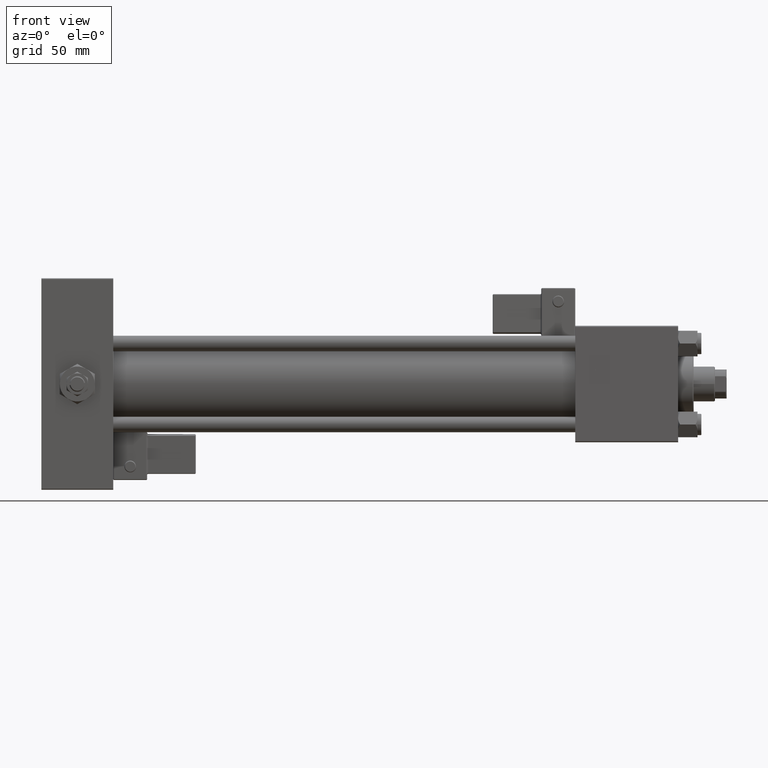
[diagram: clean part render]
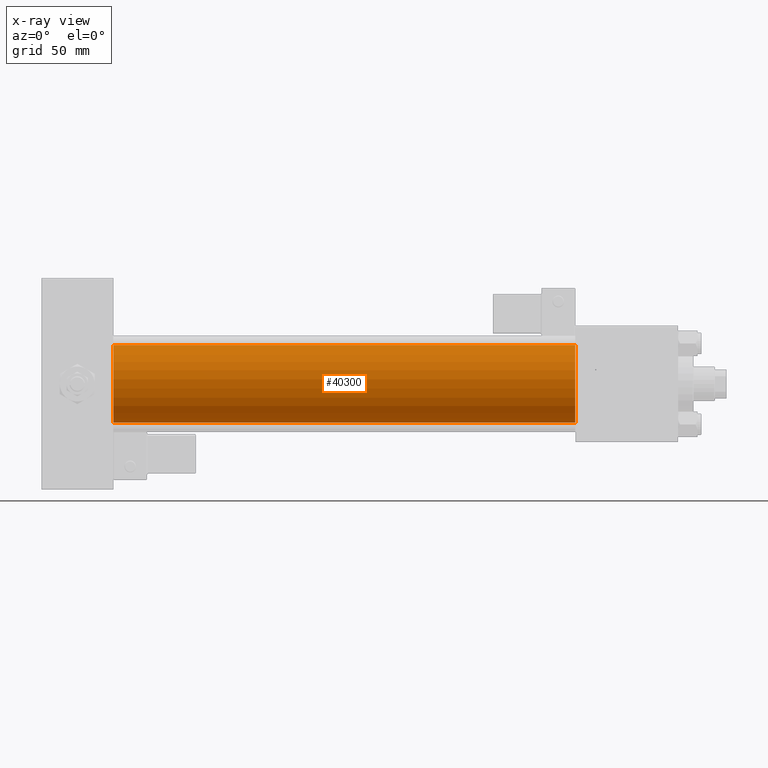
[diagram: x-ray — body ghosted, one internal face saturated and labeled with its STEP entity id]
A machine part, front view, then the same camera in x-ray: the body is ghosted and one INTERNAL B-rep face — a face not visible from any outside direction — is saturated and labeled: STEP entity #40300.
In plain terms, the highlighted cylindrical surface (partial cylindrical patch) has radius 20 mm, axis along (-1, -0, -0).
Its self-contained STEP definition (entity closure, byte-faithful):
#20 = VERTEX_POINT ( 'NONE', #47700 ) ;
#596 = CARTESIAN_POINT ( 'NONE',  ( 274.9999999999999432, -1.527916156705042519E-16, -20.00000000000000000 ) ) ;
#1015 = CARTESIAN_POINT ( 'NONE',  ( 37.00000000000000000, -2.602085213965210642E-15, 20.00000000000000000 ) ) ;
#2478 = DIRECTION ( 'NONE',  ( 0.000000000000000000, 0.000000000000000000, -1.000000000000000000 ) ) ;
#2537 = CYLINDRICAL_SURFACE ( 'NONE', #10614, 20.00000000000000000 ) ;
#4677 = CARTESIAN_POINT ( 'NONE',  ( 274.9999999999999432, -2.602085213965210642E-15, 20.00000000000000000 ) ) ;
#6639 = FACE_OUTER_BOUND ( 'NONE', #32988, .T. ) ;
#9622 = ORIENTED_EDGE ( 'NONE', *, *, #9718, .F. ) ;
#9718 = EDGE_CURVE ( 'NONE', #20, #17624, #29566, .T. ) ;
#10614 = AXIS2_PLACEMENT_3D ( 'NONE', #34779, #35842, #11014 ) ;
#10620 = EDGE_CURVE ( 'NONE', #17624, #13580, #13294, .T. ) ;
#11014 = DIRECTION ( 'NONE',  ( 0.000000000000000000, 0.000000000000000000, 1.000000000000000000 ) ) ;
#13154 = DIRECTION ( 'NONE',  ( -1.000000000000000000, -0.000000000000000000, -0.000000000000000000 ) ) ;
#13294 = CIRCLE ( 'NONE', #23755, 20.00000000000000000 ) ;
#13580 = VERTEX_POINT ( 'NONE', #50882 ) ;
#16134 = CARTESIAN_POINT ( 'NONE',  ( 274.9999999999999432, -2.602085213965210642E-15, 0.000000000000000000 ) ) ;
#17624 = VERTEX_POINT ( 'NONE', #1015 ) ;
#19135 = AXIS2_PLACEMENT_3D ( 'NONE', #16134, #39890, #2478 ) ;
#23755 = AXIS2_PLACEMENT_3D ( 'NONE', #42790, #51498, #30788 ) ;
#25820 = ORIENTED_EDGE ( 'NONE', *, *, #10620, .F. ) ;
#27185 = VECTOR ( 'NONE', #13154, 1000.000000000000000 ) ;
#29566 = LINE ( 'NONE', #4677, #47225 ) ;
#30788 = DIRECTION ( 'NONE',  ( 0.000000000000000000, 0.000000000000000000, -1.000000000000000000 ) ) ;
#31927 = CARTESIAN_POINT ( 'NONE',  ( 274.9999999999999432, -1.527916156705042519E-16, -20.00000000000000000 ) ) ;
#32988 = EDGE_LOOP ( 'NONE', ( #46704, #50969, #25820, #9622 ) ) ;
#34779 = CARTESIAN_POINT ( 'NONE',  ( 274.9999999999999432, -2.602085213965210642E-15, 0.000000000000000000 ) ) ;
#35262 = EDGE_CURVE ( 'NONE', #20, #46486, #51373, .T. ) ;
#35842 = DIRECTION ( 'NONE',  ( -1.000000000000000000, -0.000000000000000000, -0.000000000000000000 ) ) ;
#37987 = LINE ( 'NONE', #596, #27185 ) ;
#39575 = EDGE_CURVE ( 'NONE', #46486, #13580, #37987, .T. ) ;
#39890 = DIRECTION ( 'NONE',  ( 1.000000000000000000, 0.000000000000000000, 0.000000000000000000 ) ) ;
#40300 = ADVANCED_FACE ( 'NONE', ( #6639 ), #2537, .F. ) ;
#42790 = CARTESIAN_POINT ( 'NONE',  ( 37.00000000000000000, -2.602085213965210642E-15, 0.000000000000000000 ) ) ;
#46486 = VERTEX_POINT ( 'NONE', #31927 ) ;
#46704 = ORIENTED_EDGE ( 'NONE', *, *, #35262, .T. ) ;
#47225 = VECTOR ( 'NONE', #50552, 1000.000000000000000 ) ;
#47700 = CARTESIAN_POINT ( 'NONE',  ( 274.9999999999999432, -2.602085213965210642E-15, 20.00000000000000000 ) ) ;
#50552 = DIRECTION ( 'NONE',  ( -1.000000000000000000, -0.000000000000000000, -0.000000000000000000 ) ) ;
#50882 = CARTESIAN_POINT ( 'NONE',  ( 37.00000000000000000, -1.527916156705042519E-16, -20.00000000000000000 ) ) ;
#50969 = ORIENTED_EDGE ( 'NONE', *, *, #39575, .T. ) ;
#51373 = CIRCLE ( 'NONE', #19135, 20.00000000000000000 ) ;
#51498 = DIRECTION ( 'NONE',  ( 1.000000000000000000, 0.000000000000000000, 0.000000000000000000 ) ) ;